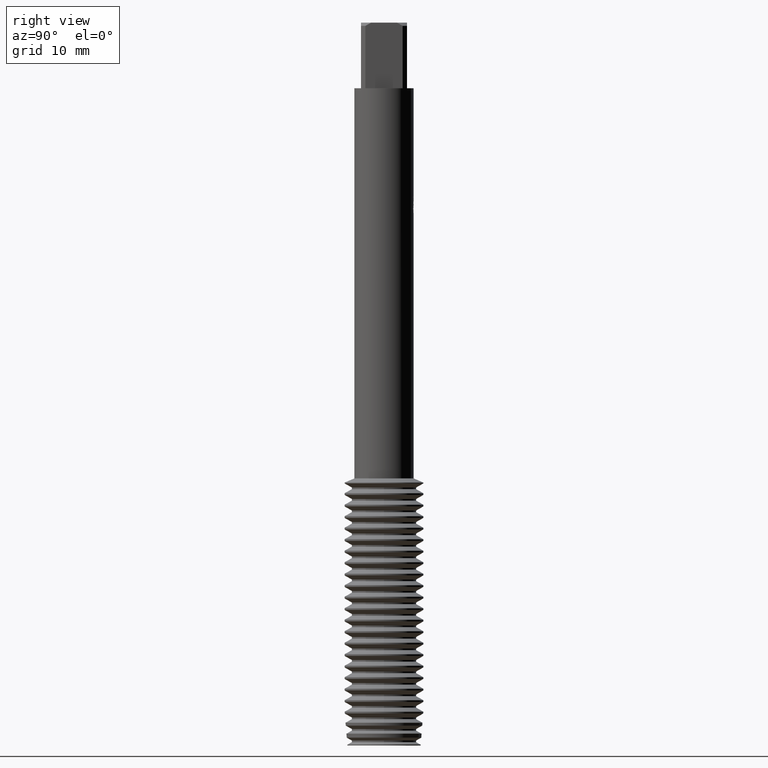
[diagram: clean part render]
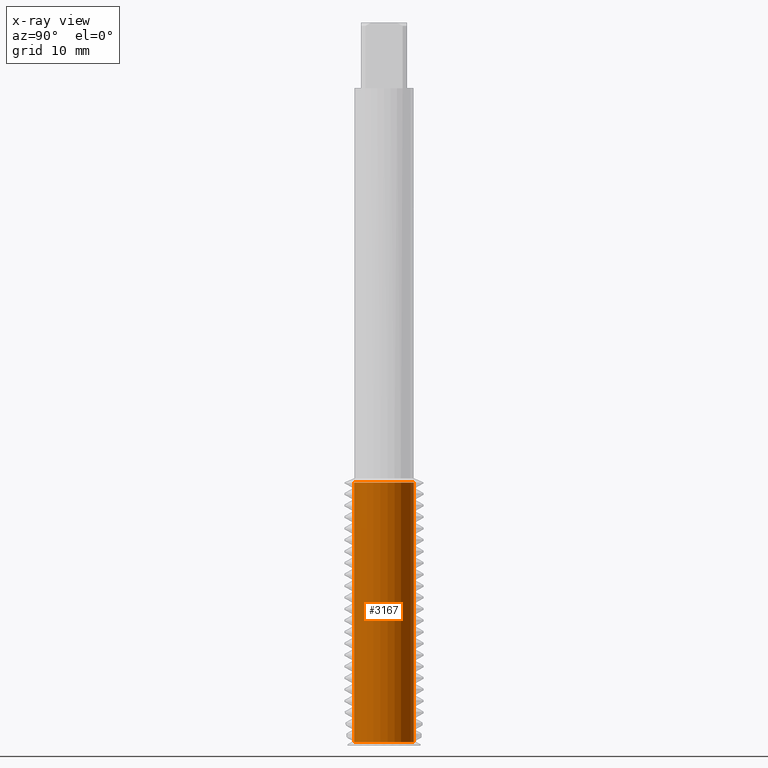
[diagram: x-ray — body ghosted, one internal face saturated and labeled with its STEP entity id]
A machine part, right view, then the same camera in x-ray: the body is ghosted and one INTERNAL B-rep face — a face not visible from any outside direction — is saturated and labeled: STEP entity #3167.
In plain terms, the highlighted cylindrical surface (edge-blend (fillet) strip) has radius 4.5475 mm, axis along (-0, -0, 1).
Its self-contained STEP definition (entity closure, byte-faithful):
#1397=EDGE_CURVE('',#2235,#1591,#3731,.T.);
#1591=VERTEX_POINT('',#3942);
#2105=VERTEX_POINT('',#4507);
#2235=VERTEX_POINT('',#4655);
#2463=VERTEX_POINT('',#4899);
#2475=EDGE_CURVE('',#2463,#2235,#4913,.T.);
#2733=EDGE_CURVE('',#1591,#2105,#5196,.T.);
#3051=EDGE_CURVE('',#2463,#2105,#5546,.T.);
#3167=ADVANCED_FACE('',(#5675),#5676,.T.);
#3731=CIRCLE('',#6353,4.547506245);
#3942=CARTESIAN_POINT('',(5.56890504167394E-016,-4.547506245,-109.542530306299));
#4507=CARTESIAN_POINT('',(5.56890504167394E-016,-4.547506245,-70.0));
#4655=CARTESIAN_POINT('',(0.0,4.547506245,-109.542530306299));
#4899=CARTESIAN_POINT('',(0.0,4.547506245,-70.0));
#4913=LINE('',#8073,#8074);
#5196=LINE('',#8502,#8503);
#5546=CIRCLE('',#8994,4.547506245);
#5675=FACE_OUTER_BOUND('',#9172,.T.);
#5676=CYLINDRICAL_SURFACE('',#9173,4.547506245);
#6353=AXIS2_PLACEMENT_3D('',#9971,#9972,#9973);
#8073=CARTESIAN_POINT('',(-5.56890504167394E-016,4.547506245,-89.7712651531493));
#8074=VECTOR('',#11459,1.0);
#8502=CARTESIAN_POINT('',(5.56890504167394E-016,-4.547506245,-89.7712651531493));
#8503=VECTOR('',#11797,1.0);
#8994=AXIS2_PLACEMENT_3D('',#12240,#12241,#12242);
#9172=EDGE_LOOP('',(#12412,#12413,#12414,#12415));
#9173=AXIS2_PLACEMENT_3D('',#12416,#12417,#12418);
#9971=CARTESIAN_POINT('',(0.0,0.0,-109.542530306299));
#9972=DIRECTION('',(0.0,0.0,-1.0));
#9973=DIRECTION('',(0.0,1.0,0.0));
#11459=DIRECTION('',(0.0,0.0,-1.0));
#11797=DIRECTION('',(-0.0,-0.0,1.0));
#12240=CARTESIAN_POINT('',(0.0,0.0,-70.0));
#12241=DIRECTION('',(0.0,0.0,-1.0));
#12242=DIRECTION('',(0.0,1.0,0.0));
#12412=ORIENTED_EDGE('',*,*,#2475,.F.);
#12413=ORIENTED_EDGE('',*,*,#3051,.T.);
#12414=ORIENTED_EDGE('',*,*,#2733,.F.);
#12415=ORIENTED_EDGE('',*,*,#1397,.F.);
#12416=CARTESIAN_POINT('',(0.0,0.0,-89.7712651531493));
#12417=DIRECTION('',(-0.0,-0.0,1.0));
#12418=DIRECTION('',(0.0,1.0,0.0));